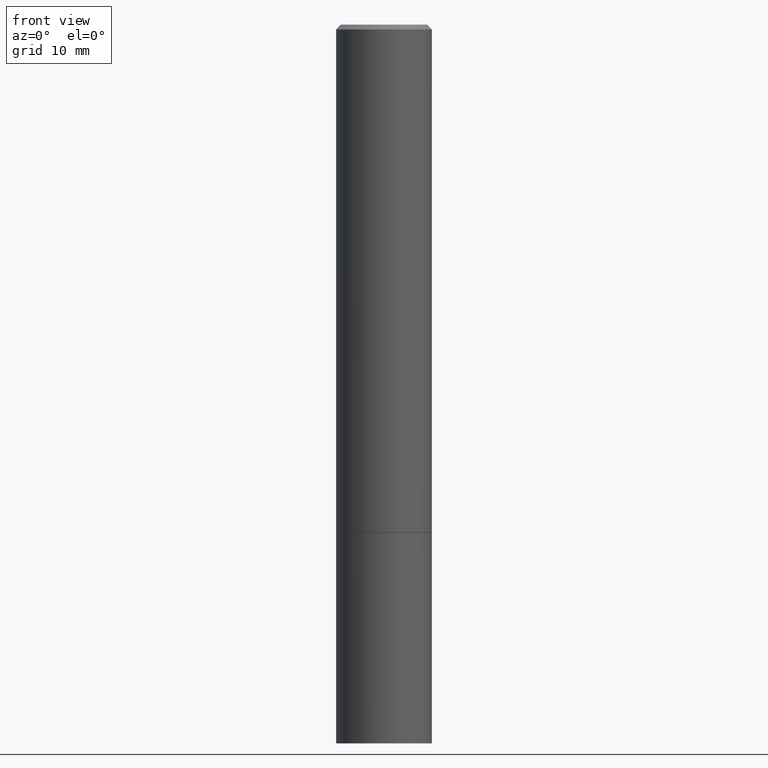
[diagram: clean part render]
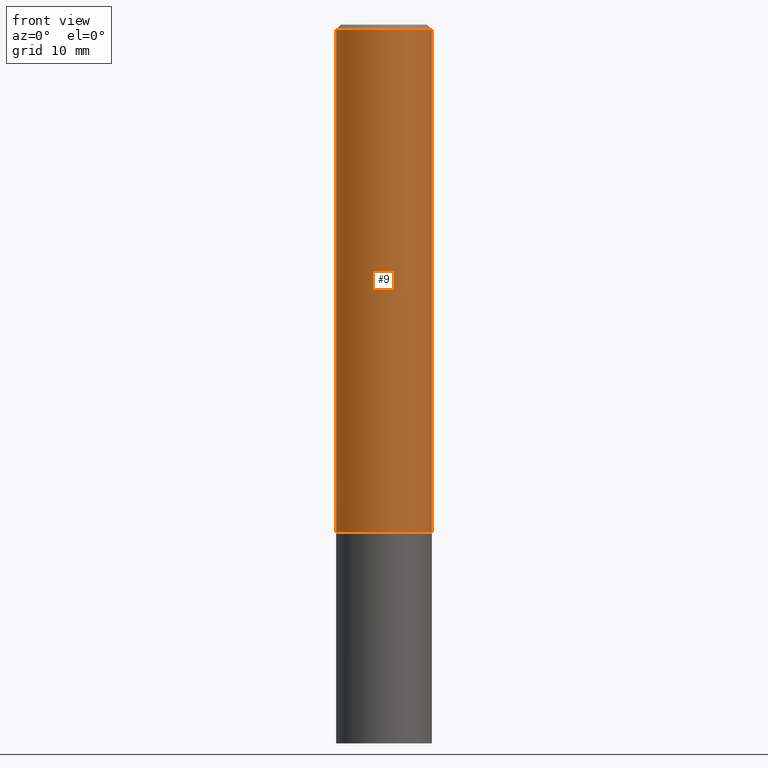
[diagram: same view with one face highlighted and labeled with its STEP entity id]
A machine part, front view. The second image highlights one B-rep face of the part: STEP entity #9.
In plain terms, the highlighted cylindrical surface (partial cylindrical patch) has radius 5 mm, axis along (-0, 0, 1).
Its self-contained STEP definition (entity closure, byte-faithful):
#9 = ADVANCED_FACE ( 'NONE', ( #199 ), #88, .T. ) ;
#11 = DIRECTION ( 'NONE',  ( -2.445468806185136597E-29, 3.491481338843145583E-15, 1.000000000000000000 ) ) ;
#12 = CARTESIAN_POINT ( 'NONE',  ( 0.1968499999999997752, -1.420318657638187347E-15, -0.02000000000000001776 ) ) ;
#15 = LINE ( 'NONE', #220, #198 ) ;
#16 = CARTESIAN_POINT ( 'NONE',  ( -0.1968499999999999139, 1.398703375343756604E-15, -9.682923725166778072E-30 ) ) ;
#19 = CARTESIAN_POINT ( 'NONE',  ( 4.890937612370276662E-31, -6.982962677686296539E-17, -0.02000000000000001776 ) ) ;
#29 = VERTEX_POINT ( 'NONE', #64 ) ;
#38 = ORIENTED_EDGE ( 'NONE', *, *, #304, .T. ) ;
#50 = EDGE_CURVE ( 'NONE', #286, #29, #223, .T. ) ;
#59 = CIRCLE ( 'NONE', #363, 0.1968499999999997752 ) ;
#61 = DIRECTION ( 'NONE',  ( -2.445468806185136597E-29, 3.491481338843145583E-15, 1.000000000000000000 ) ) ;
#64 = CARTESIAN_POINT ( 'NONE',  ( 0.1968500000000000250, -8.656778831527691107E-15, -2.085699999999999665 ) ) ;
#85 = VERTEX_POINT ( 'NONE', #291 ) ;
#88 = CYLINDRICAL_SURFACE ( 'NONE', #239, 0.1968499999999999139 ) ;
#129 = CARTESIAN_POINT ( 'NONE',  ( -0.1968500000000000250, -2.277302752257247033E-15, -2.085699999999999665 ) ) ;
#147 = VERTEX_POINT ( 'NONE', #12 ) ;
#164 = VECTOR ( 'NONE', #328, 39.37007874015748143 ) ;
#167 = ORIENTED_EDGE ( 'NONE', *, *, #50, .T. ) ;
#180 = CARTESIAN_POINT ( 'NONE',  ( 5.100514289060338336E-29, -7.282182628425147921E-15, -2.085699999999999665 ) ) ;
#183 = ORIENTED_EDGE ( 'NONE', *, *, #349, .F. ) ;
#189 = DIRECTION ( 'NONE',  ( -2.445468806185136597E-29, 3.491481338843145583E-15, 1.000000000000000000 ) ) ;
#190 = DIRECTION ( 'NONE',  ( -2.445468806185136877E-29, 3.491481338843145188E-15, 1.000000000000000000 ) ) ;
#198 = VECTOR ( 'NONE', #190, 39.37007874015748143 ) ;
#199 = FACE_OUTER_BOUND ( 'NONE', #230, .T. ) ;
#204 = AXIS2_PLACEMENT_3D ( 'NONE', #180, #11, #301 ) ;
#220 = CARTESIAN_POINT ( 'NONE',  ( 0.1968499999999999139, -1.374596203102541017E-15, 9.598753983154295253E-30 ) ) ;
#223 = CIRCLE ( 'NONE', #204, 0.1968500000000000250 ) ;
#230 = EDGE_LOOP ( 'NONE', ( #260, #167, #38, #183 ) ) ;
#239 = AXIS2_PLACEMENT_3D ( 'NONE', #261, #61, #317 ) ;
#247 = DIRECTION ( 'NONE',  ( 1.000000000000000000, -6.982962677686266711E-15, 0.000000000000000000 ) ) ;
#248 = EDGE_CURVE ( 'NONE', #286, #85, #249, .T. ) ;
#249 = LINE ( 'NONE', #16, #164 ) ;
#260 = ORIENTED_EDGE ( 'NONE', *, *, #248, .F. ) ;
#261 = CARTESIAN_POINT ( 'NONE',  ( 0.000000000000000000, 0.000000000000000000, 0.000000000000000000 ) ) ;
#286 = VERTEX_POINT ( 'NONE', #129 ) ;
#291 = CARTESIAN_POINT ( 'NONE',  ( -0.1968499999999997752, 1.304766576325677127E-15, -0.02000000000000001776 ) ) ;
#301 = DIRECTION ( 'NONE',  ( 1.000000000000000000, -6.982962677686267499E-15, 0.000000000000000000 ) ) ;
#304 = EDGE_CURVE ( 'NONE', #29, #147, #15, .T. ) ;
#317 = DIRECTION ( 'NONE',  ( 1.000000000000000000, -6.982962677686266711E-15, 4.876176775795935793E-29 ) ) ;
#328 = DIRECTION ( 'NONE',  ( -2.445468806185136877E-29, 3.491481338843145188E-15, 1.000000000000000000 ) ) ;
#349 = EDGE_CURVE ( 'NONE', #85, #147, #59, .T. ) ;
#363 = AXIS2_PLACEMENT_3D ( 'NONE', #19, #189, #247 ) ;